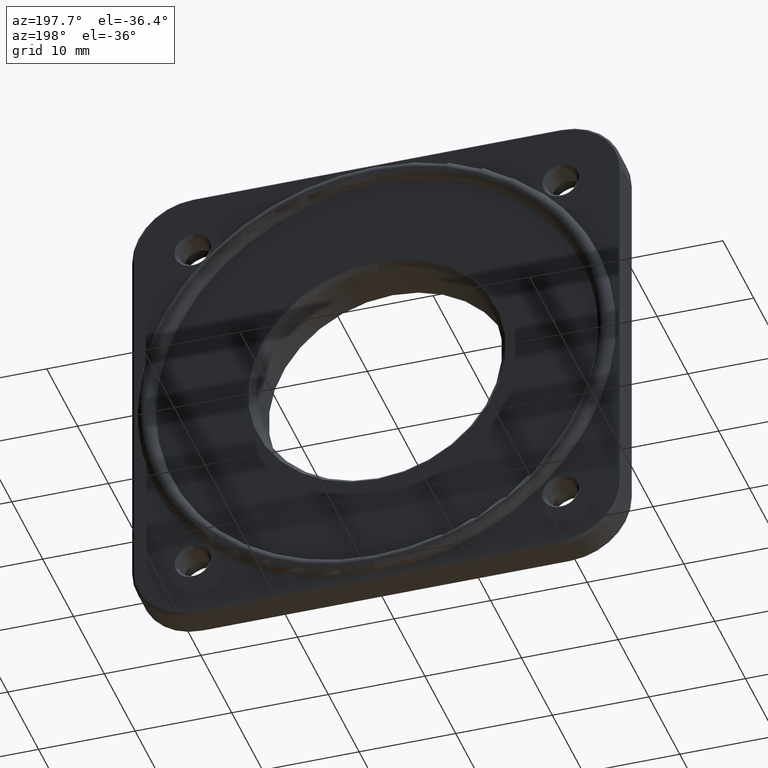
[diagram: clean part render]
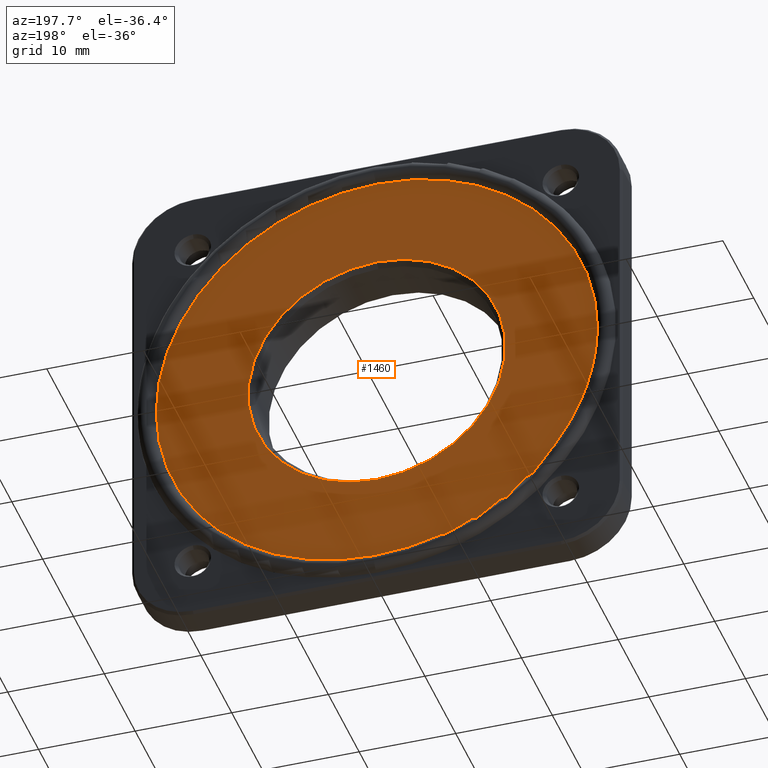
[diagram: same view with one face highlighted and labeled with its STEP entity id]
A machine part, auxiliary view. The second image highlights one B-rep face of the part: STEP entity #1460.
In plain terms, the highlighted planar face has unit normal (0, 1, 0).
Its self-contained STEP definition (entity closure, byte-faithful):
#76 = AXIS2_PLACEMENT_3D ( 'NONE', #2813, #1578, #602 ) ;
#125 = VERTEX_POINT ( 'NONE', #557 ) ;
#170 = ORIENTED_EDGE ( 'NONE', *, *, #1838, .T. ) ;
#203 = VERTEX_POINT ( 'NONE', #3128 ) ;
#235 = FACE_BOUND ( 'NONE', #523, .T. ) ;
#353 = AXIS2_PLACEMENT_3D ( 'NONE', #2727, #3045, #2157 ) ;
#468 = AXIS2_PLACEMENT_3D ( 'NONE', #1345, #3275, #3774 ) ;
#507 = EDGE_CURVE ( 'NONE', #2232, #981, #3626, .T. ) ;
#523 = EDGE_LOOP ( 'NONE', ( #2105, #170 ) ) ;
#557 = CARTESIAN_POINT ( 'NONE',  ( 3.978711772405350984E-16, 5.599999999999999645, -13.32700000000000529 ) ) ;
#602 = DIRECTION ( 'NONE',  ( 0.000000000000000000, 0.000000000000000000, 1.000000000000000000 ) ) ;
#844 = CARTESIAN_POINT ( 'NONE',  ( 0.000000000000000000, 5.599999999999999645, 22.85999999999999943 ) ) ;
#860 = AXIS2_PLACEMENT_3D ( 'NONE', #1533, #2427, #2486 ) ;
#976 = CIRCLE ( 'NONE', #76, 13.32700000000000529 ) ;
#981 = VERTEX_POINT ( 'NONE', #1637 ) ;
#1226 = FACE_OUTER_BOUND ( 'NONE', #3342, .T. ) ;
#1345 = CARTESIAN_POINT ( 'NONE',  ( 0.000000000000000000, 5.599999999999999645, 0.000000000000000000 ) ) ;
#1460 = ADVANCED_FACE ( 'NONE', ( #235, #1226 ), #2403, .T. ) ;
#1533 = CARTESIAN_POINT ( 'NONE',  ( 0.000000000000000000, 5.599999999999999645, 0.000000000000000000 ) ) ;
#1578 = DIRECTION ( 'NONE',  ( -0.000000000000000000, -1.000000000000000000, -0.000000000000000000 ) ) ;
#1637 = CARTESIAN_POINT ( 'NONE',  ( 2.799542582850849100E-15, 5.599999999999999645, -22.85999999999999943 ) ) ;
#1838 = EDGE_CURVE ( 'NONE', #125, #203, #976, .T. ) ;
#1917 = DIRECTION ( 'NONE',  ( 0.000000000000000000, 0.000000000000000000, 1.000000000000000000 ) ) ;
#2105 = ORIENTED_EDGE ( 'NONE', *, *, #2389, .T. ) ;
#2157 = DIRECTION ( 'NONE',  ( 0.000000000000000000, 0.000000000000000000, 1.000000000000000000 ) ) ;
#2183 = DIRECTION ( 'NONE',  ( 0.000000000000000000, 1.000000000000000000, 0.000000000000000000 ) ) ;
#2232 = VERTEX_POINT ( 'NONE', #844 ) ;
#2343 = CIRCLE ( 'NONE', #860, 22.85999999999999943 ) ;
#2365 = ORIENTED_EDGE ( 'NONE', *, *, #3223, .T. ) ;
#2369 = ORIENTED_EDGE ( 'NONE', *, *, #507, .T. ) ;
#2389 = EDGE_CURVE ( 'NONE', #203, #125, #2578, .T. ) ;
#2403 = PLANE ( 'NONE',  #468 ) ;
#2427 = DIRECTION ( 'NONE',  ( 0.000000000000000000, 1.000000000000000000, 0.000000000000000000 ) ) ;
#2486 = DIRECTION ( 'NONE',  ( 0.000000000000000000, 0.000000000000000000, 1.000000000000000000 ) ) ;
#2578 = CIRCLE ( 'NONE', #353, 13.32700000000000529 ) ;
#2727 = CARTESIAN_POINT ( 'NONE',  ( -1.234215611983143233E-15, 5.599999999999999645, 0.000000000000000000 ) ) ;
#2813 = CARTESIAN_POINT ( 'NONE',  ( -1.234215611983143233E-15, 5.599999999999999645, 0.000000000000000000 ) ) ;
#2835 = CARTESIAN_POINT ( 'NONE',  ( 0.000000000000000000, 5.599999999999999645, 0.000000000000000000 ) ) ;
#3045 = DIRECTION ( 'NONE',  ( -0.000000000000000000, -1.000000000000000000, -0.000000000000000000 ) ) ;
#3128 = CARTESIAN_POINT ( 'NONE',  ( -1.234215611983143233E-15, 5.599999999999999645, 13.32700000000000529 ) ) ;
#3223 = EDGE_CURVE ( 'NONE', #981, #2232, #2343, .T. ) ;
#3275 = DIRECTION ( 'NONE',  ( 0.000000000000000000, 1.000000000000000000, 0.000000000000000000 ) ) ;
#3342 = EDGE_LOOP ( 'NONE', ( #2369, #2365 ) ) ;
#3626 = CIRCLE ( 'NONE', #3780, 22.85999999999999943 ) ;
#3774 = DIRECTION ( 'NONE',  ( 0.000000000000000000, -0.000000000000000000, 1.000000000000000000 ) ) ;
#3780 = AXIS2_PLACEMENT_3D ( 'NONE', #2835, #2183, #1917 ) ;